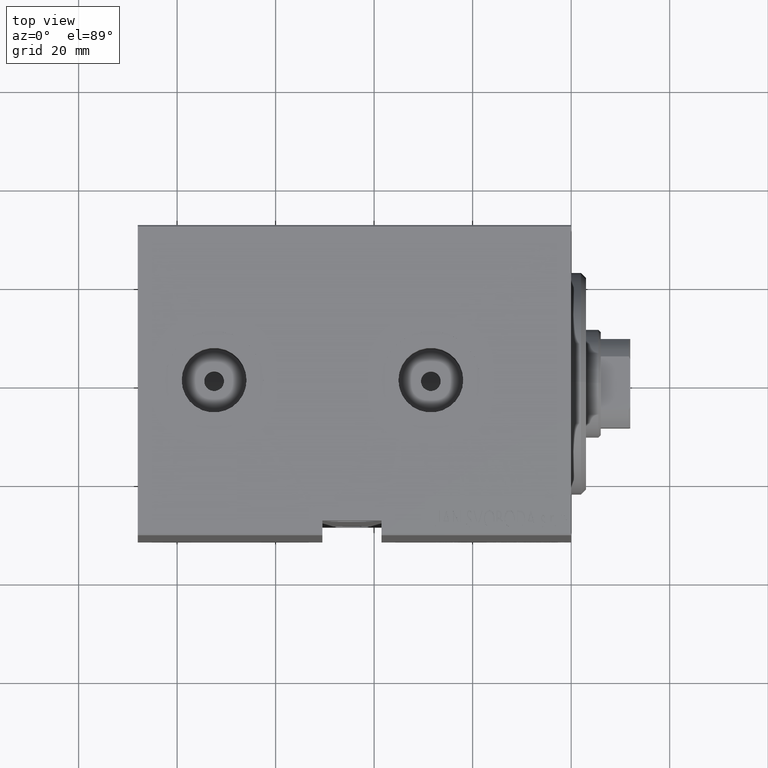
[diagram: clean part render]
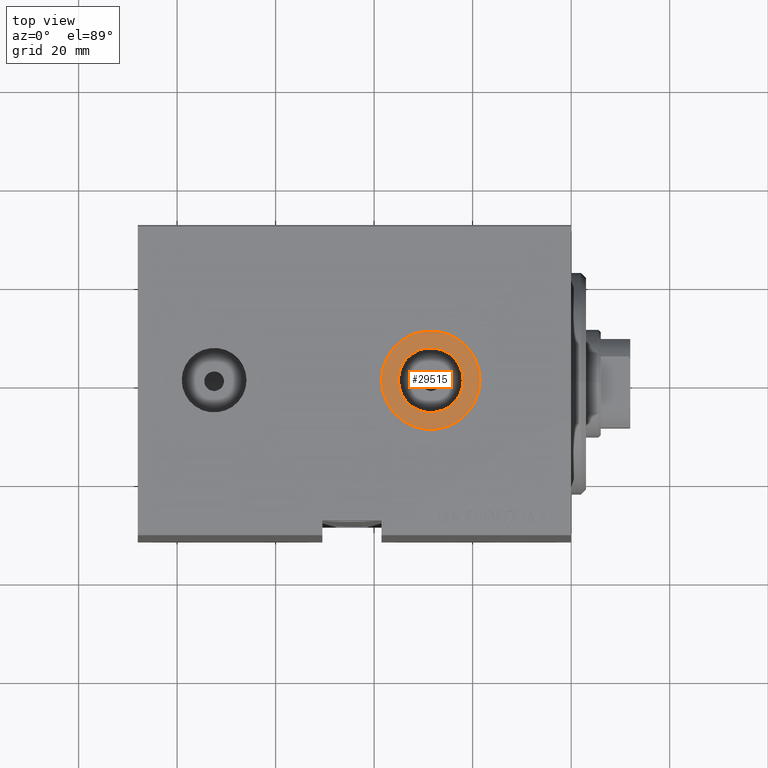
[diagram: same view with one face highlighted and labeled with its STEP entity id]
A machine part, top view. The second image highlights one B-rep face of the part: STEP entity #29515.
In plain terms, the highlighted planar face has unit normal (0, 0, 1).
Its self-contained STEP definition (entity closure, byte-faithful):
#2191 = CARTESIAN_POINT ( 'NONE',  ( 28.50000000000000000, -9.361999711620863359E-15, 42.39999999999999147 ) ) ;
#2302 = CARTESIAN_POINT ( 'NONE',  ( 35.07999999999999829, -9.361999711620863359E-15, 42.39999999999999147 ) ) ;
#2815 = EDGE_LOOP ( 'NONE', ( #41662, #4708 ) ) ;
#3727 = CARTESIAN_POINT ( 'NONE',  ( 28.50000000000000000, -9.361999711620863359E-15, 42.39999999999999147 ) ) ;
#4668 = DIRECTION ( 'NONE',  ( 1.000000000000000000, 0.000000000000000000, 0.000000000000000000 ) ) ;
#4708 = ORIENTED_EDGE ( 'NONE', *, *, #5881, .T. ) ;
#5881 = EDGE_CURVE ( 'NONE', #39979, #27856, #27888, .T. ) ;
#7078 = AXIS2_PLACEMENT_3D ( 'NONE', #42931, #32894, #38915 ) ;
#7480 = CARTESIAN_POINT ( 'NONE',  ( 28.50000000000000000, -9.361999711620863359E-15, 42.39999999999999147 ) ) ;
#7713 = FACE_OUTER_BOUND ( 'NONE', #2815, .T. ) ;
#8022 = CARTESIAN_POINT ( 'NONE',  ( 21.92000000000000171, -8.556182117781905894E-15, 42.39999999999999147 ) ) ;
#8152 = PLANE ( 'NONE',  #8475 ) ;
#8475 = AXIS2_PLACEMENT_3D ( 'NONE', #37753, #28175, #11493 ) ;
#11493 = DIRECTION ( 'NONE',  ( 1.000000000000000000, 0.000000000000000000, -0.000000000000000000 ) ) ;
#13272 = CIRCLE ( 'NONE', #40280, 10.00000000000000533 ) ;
#13479 = EDGE_CURVE ( 'NONE', #15823, #35145, #23801, .T. ) ;
#15823 = VERTEX_POINT ( 'NONE', #8022 ) ;
#17315 = DIRECTION ( 'NONE',  ( 0.000000000000000000, 0.000000000000000000, 1.000000000000000000 ) ) ;
#17723 = DIRECTION ( 'NONE',  ( 1.000000000000000000, 0.000000000000000000, 0.000000000000000000 ) ) ;
#21717 = FACE_BOUND ( 'NONE', #41983, .T. ) ;
#21728 = CARTESIAN_POINT ( 'NONE',  ( 18.49999999999999645, -8.137352912473508722E-15, 42.39999999999999147 ) ) ;
#23205 = EDGE_CURVE ( 'NONE', #27856, #39979, #13272, .T. ) ;
#23801 = CIRCLE ( 'NONE', #40169, 6.579999999999999183 ) ;
#27856 = VERTEX_POINT ( 'NONE', #43620 ) ;
#27888 = CIRCLE ( 'NONE', #37129, 10.00000000000000533 ) ;
#28175 = DIRECTION ( 'NONE',  ( 0.000000000000000000, 0.000000000000000000, 1.000000000000000000 ) ) ;
#29125 = DIRECTION ( 'NONE',  ( 0.000000000000000000, 0.000000000000000000, 1.000000000000000000 ) ) ;
#29515 = ADVANCED_FACE ( 'NONE', ( #21717, #7713 ), #8152, .T. ) ;
#30875 = DIRECTION ( 'NONE',  ( 1.000000000000000000, 0.000000000000000000, 0.000000000000000000 ) ) ;
#31015 = ORIENTED_EDGE ( 'NONE', *, *, #13479, .F. ) ;
#32894 = DIRECTION ( 'NONE',  ( 0.000000000000000000, 0.000000000000000000, 1.000000000000000000 ) ) ;
#34006 = ORIENTED_EDGE ( 'NONE', *, *, #39624, .F. ) ;
#35145 = VERTEX_POINT ( 'NONE', #2302 ) ;
#37129 = AXIS2_PLACEMENT_3D ( 'NONE', #7480, #37297, #17723 ) ;
#37297 = DIRECTION ( 'NONE',  ( 0.000000000000000000, 0.000000000000000000, 1.000000000000000000 ) ) ;
#37753 = CARTESIAN_POINT ( 'NONE',  ( 28.50000000000000000, -9.361999711620863359E-15, 42.39999999999999147 ) ) ;
#38915 = DIRECTION ( 'NONE',  ( 1.000000000000000000, 0.000000000000000000, 0.000000000000000000 ) ) ;
#39624 = EDGE_CURVE ( 'NONE', #35145, #15823, #41919, .T. ) ;
#39979 = VERTEX_POINT ( 'NONE', #21728 ) ;
#40169 = AXIS2_PLACEMENT_3D ( 'NONE', #3727, #17315, #30875 ) ;
#40280 = AXIS2_PLACEMENT_3D ( 'NONE', #2191, #29125, #4668 ) ;
#41662 = ORIENTED_EDGE ( 'NONE', *, *, #23205, .T. ) ;
#41919 = CIRCLE ( 'NONE', #7078, 6.579999999999999183 ) ;
#41983 = EDGE_LOOP ( 'NONE', ( #34006, #31015 ) ) ;
#42931 = CARTESIAN_POINT ( 'NONE',  ( 28.50000000000000000, -9.361999711620863359E-15, 42.39999999999999147 ) ) ;
#43620 = CARTESIAN_POINT ( 'NONE',  ( 38.50000000000000711, -9.361999711620863359E-15, 42.39999999999999147 ) ) ;